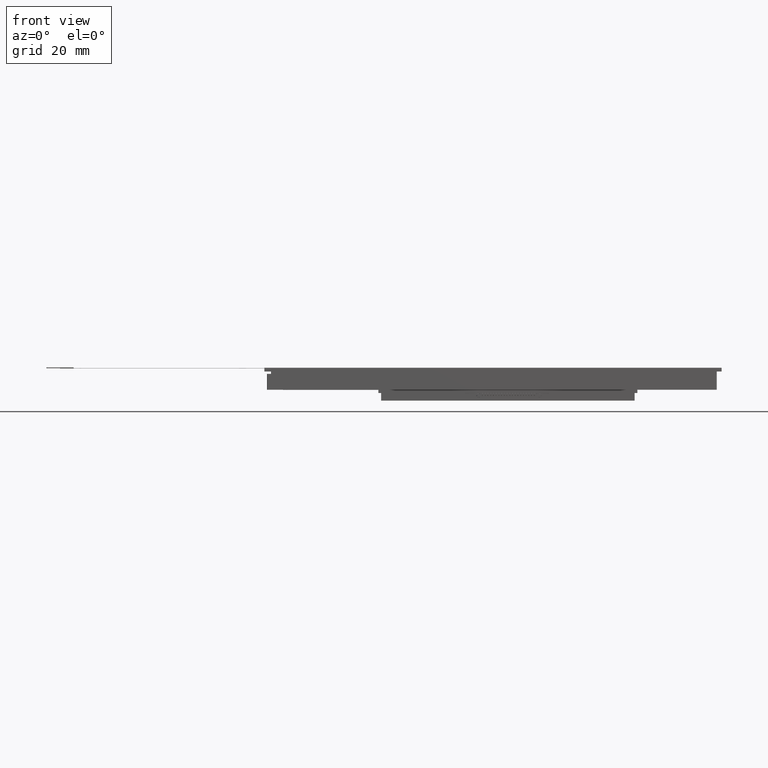
[diagram: clean part render]
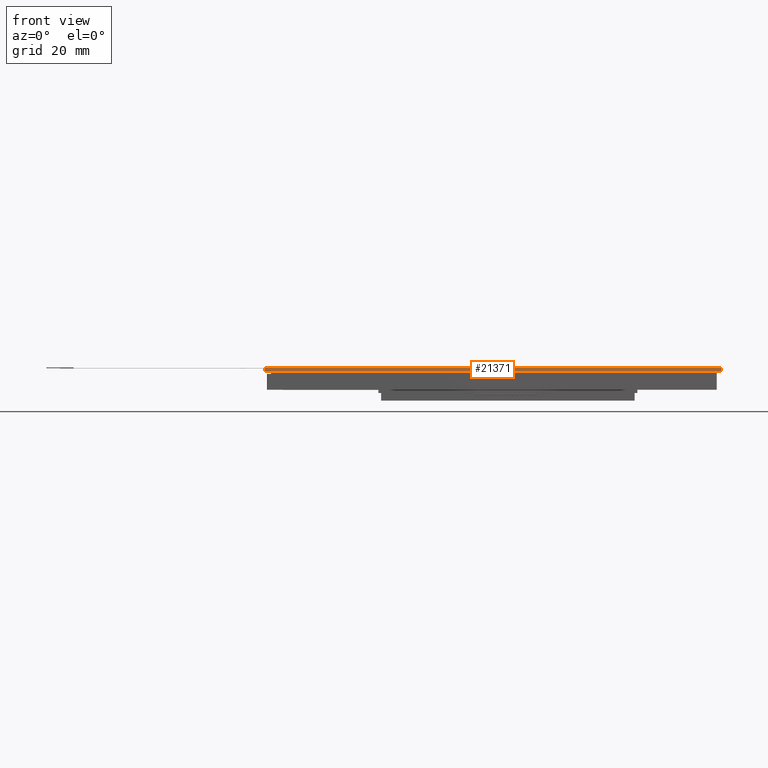
[diagram: same view with one face highlighted and labeled with its STEP entity id]
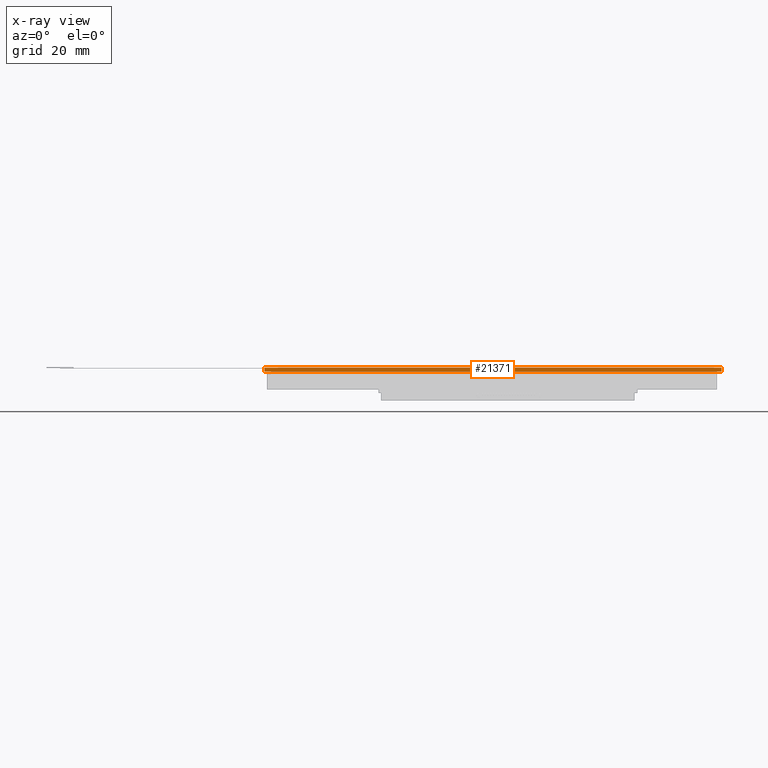
[diagram: x-ray of the same camera — body ghosted, the highlighted face saturated]
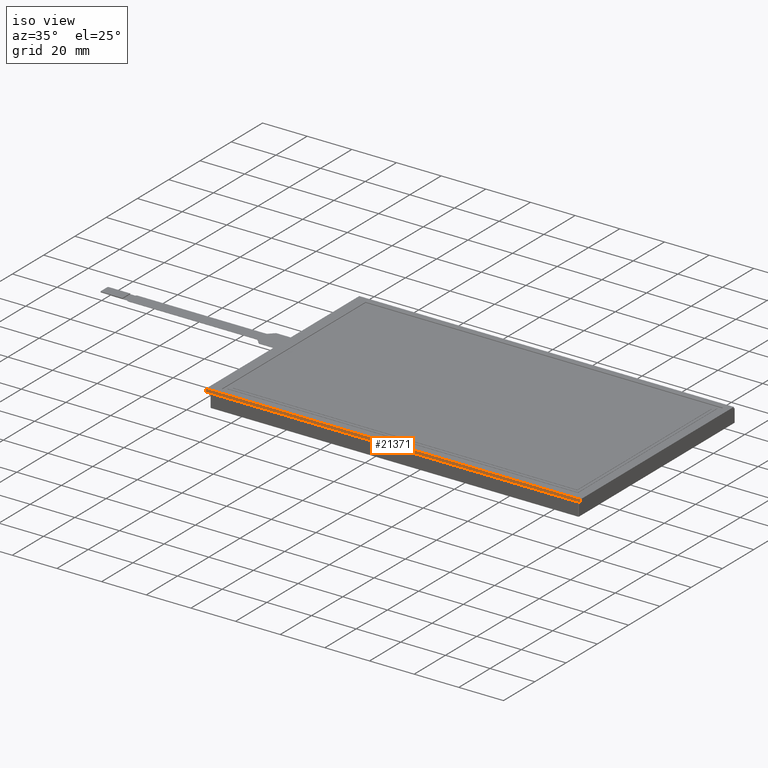
[diagram: same view with one face highlighted and labeled with its STEP entity id]
A machine part, front view. The second image highlights one B-rep face of the part: STEP entity #21371.
The next image is the same camera in x-ray: the body ghosted, the highlighted face saturated — about 0% of this face is hidden behind the body in this view.
A second angle (iso view) of the same face is appended — the face is thin or edge-on in the first view.
In plain terms, the highlighted planar face has unit normal (0, -1, 0).
Its self-contained STEP definition (entity closure, byte-faithful):
#891=FACE_OUTER_BOUND('',#2037,.T.);
#2037=EDGE_LOOP('',(#14502,#14503,#14504,#14505));
#3247=LINE('',#30201,#5991);
#3407=LINE('',#30566,#6151);
#3413=LINE('',#30577,#6157);
#3415=LINE('',#30580,#6159);
#5991=VECTOR('',#24232,10.);
#6151=VECTOR('',#24554,10.);
#6157=VECTOR('',#24568,10.);
#6159=VECTOR('',#24572,10.);
#8709=VERTEX_POINT('',#30198);
#8710=VERTEX_POINT('',#30200);
#8833=VERTEX_POINT('',#30563);
#8834=VERTEX_POINT('',#30565);
#10839=EDGE_CURVE('',#8709,#8710,#3247,.T.);
#11020=EDGE_CURVE('',#8833,#8834,#3407,.T.);
#11026=EDGE_CURVE('',#8833,#8710,#3413,.T.);
#11028=EDGE_CURVE('',#8834,#8709,#3415,.T.);
#14502=ORIENTED_EDGE('',*,*,#11020,.F.);
#14503=ORIENTED_EDGE('',*,*,#11026,.T.);
#14504=ORIENTED_EDGE('',*,*,#10839,.F.);
#14505=ORIENTED_EDGE('',*,*,#11028,.F.);
#20439=PLANE('',#22561);
#21371=ADVANCED_FACE('',(#891),#20439,.T.);
#22561=AXIS2_PLACEMENT_3D('',#30579,#24570,#24571);
#24232=DIRECTION('',(-1.,-1.05893105180343E-16,0.));
#24554=DIRECTION('',(1.,1.05893105180343E-16,0.));
#24568=DIRECTION('',(0.,0.,-1.));
#24570=DIRECTION('center_axis',(1.05893105180343E-16,-1.,0.));
#24571=DIRECTION('ref_axis',(-1.,-1.05893105180343E-16,0.));
#24572=DIRECTION('',(0.,0.,-1.));
#30198=CARTESIAN_POINT('',(82.8,-49.,-1.4));
#30200=CARTESIAN_POINT('',(-84.95,-49.,-1.4));
#30201=CARTESIAN_POINT('',(-84.95,-49.,-1.4));
#30563=CARTESIAN_POINT('',(-84.95,-49.,0.));
#30565=CARTESIAN_POINT('',(82.8,-49.,0.));
#30566=CARTESIAN_POINT('',(-84.95,-49.,0.));
#30577=CARTESIAN_POINT('',(-84.95,-49.,0.));
#30579=CARTESIAN_POINT('Origin',(82.8,-49.,0.));
#30580=CARTESIAN_POINT('',(82.8,-49.,0.));